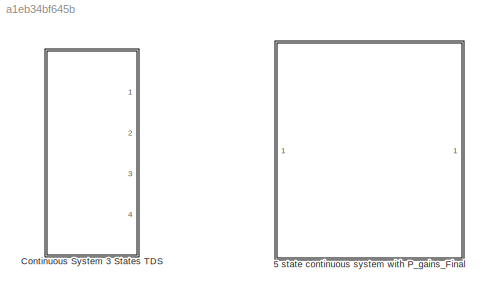
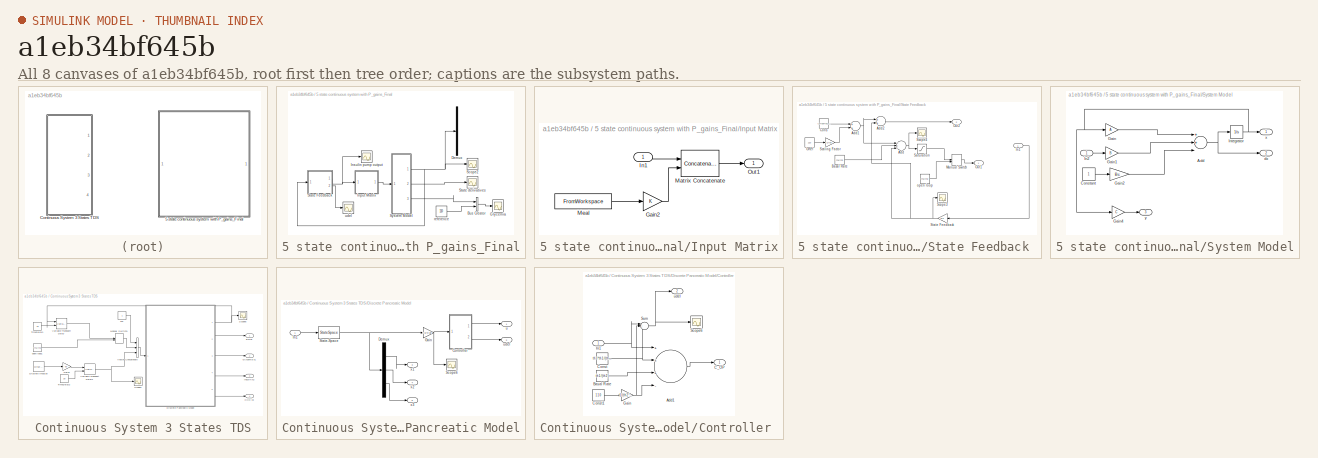
[diagram: thumbnail index - all 8 canvases of the model, root first then tree order]
MODEL slx_a1eb34bf645b
KIND model
CONFIG AbsTol = auto
CONFIG EnableMultiTasking = off
CONFIG FixedStep = auto
CONFIG MaxStep = auto
CONFIG MinStep = auto
CONFIG RelTol = 1e-3
CONFIG SampleTimeConstraint = Unconstrained
CONFIG Solver = VariableStepAuto
CONFIG SolverName = VariableStepAuto
CONFIG StartTime = 0.0
CONFIG StopTime = 1500
BLOCK [SubSystem] 5 state continuous system with P_gains_Final
  Ports = []
  RequestExecContextInheritance = off
BLOCK [BusCreator] 5 state continuous system with P_gains_Final/Bus Creator
  DisplayOption = bar
  InheritFromInputs = on
  Inputs = 2
  Ports = [2, 1]
BLOCK [Demux] 5 state continuous system with P_gains_Final/Demux
  DisplayOption = bar
  Outputs = 5
  Ports = [1, 5]
BLOCK [Scope] 5 state continuous system with P_gains_Final/Glycemia
  Floating = off
  NumInputPorts = 1
  Ports = [1]
  ScopeSpecificationString = Simulink.scopes.TimeScopeBlockCfg('CurrentConfiguration', extmgr.ConfigurationSet(extmgr.Configuration('Core','General UI',true,'FigureColor',[1 1 1]),extmgr.Configuration('Core','Source UI',true),extmgr.Configuration('Sources','WiredSimulink',true,'DataLoggingVariableName','ScopeData1'),extmgr.Configuration('Visuals','Time Domain',true,'SerializedDisplays',{struct('MinYLimReal','98.749','MaxYLimR...<+1828ch>
BLOCK [SubSystem] 5 state continuous system with P_gains_Final/Input Matrix
  Ports = [1, 1]
  RequestExecContextInheritance = off
BLOCK [Gain] 5 state continuous system with P_gains_Final/Input Matrix/Gain2
  OutDataTypeStr = Inherit: Inherit via internal rule
  ParamDataTypeStr = Inherit: Inherit via internal rule
  SaturateOnIntegerOverflow = off
BLOCK [Inport] 5 state continuous system with P_gains_Final/Input Matrix/In1
  IconDisplay = Port number
BLOCK [Concatenate] 5 state continuous system with P_gains_Final/Input Matrix/Matrix Concatenate
  ConcatenateDimension = 2
  Ports = [2, 1]
BLOCK [FromWorkspace] 5 state continuous system with P_gains_Final/Input Matrix/Meal
  SampleTime = 0
  VariableName = [temps'  repas']
  ZeroCross = on
BLOCK [Outport] 5 state continuous system with P_gains_Final/Input Matrix/Out1
  IconDisplay = Port number
BLOCK [Scope] 5 state continuous system with P_gains_Final/Insulin pump output
  Floating = off
  NumInputPorts = 1
  Ports = [1]
  ScopeSpecificationString = Simulink.scopes.TimeScopeBlockCfg('CurrentConfiguration', extmgr.ConfigurationSet(extmgr.Configuration('Core','General UI',true,'FigureColor',[1 1 1]),extmgr.Configuration('Core','Source UI',true),extmgr.Configuration('Sources','WiredSimulink',true,'DataLoggingVariableName','ScopeData1'),extmgr.Configuration('Visuals','Time Domain',true,'SerializedDisplays',{struct('MinYLimReal','-0.00721','MaxYLi...<+1682ch>
BLOCK [Scope] 5 state continuous system with P_gains_Final/Scope2
  Floating = off
  NumInputPorts = 1
  Ports = [1]
  ScopeSpecificationString = Simulink.scopes.TimeScopeBlockCfg('CurrentConfiguration', extmgr.ConfigurationSet(extmgr.Configuration('Core','General UI',true,'FigureColor',[1 1 1]),extmgr.Configuration('Core','Source UI',true),extmgr.Configuration('Sources','WiredSimulink',true,'DataLoggingVariableName','ScopeData2'),extmgr.Configuration('Visuals','Time Domain',true,'SerializedDisplays',{struct('MinYLimReal','-2.53715','MaxYLi...<+1918ch>
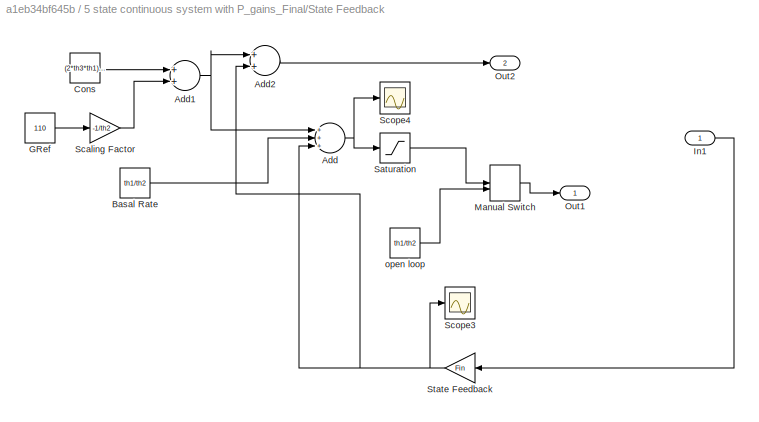
BLOCK [SubSystem] 5 state continuous system with P_gains_Final/State Feedback 
  Ports = [1, 2]
  RequestExecContextInheritance = off
BLOCK [Sum] 5 state continuous system with P_gains_Final/State Feedback /Add
  InputSameDT = off
  Inputs = +++
  OutDataTypeStr = Inherit: Inherit via internal rule
  Ports = [3, 1]
  SaturateOnIntegerOverflow = off
BLOCK [Sum] 5 state continuous system with P_gains_Final/State Feedback /Add1
  InputSameDT = off
  OutDataTypeStr = Inherit: Inherit via internal rule
  Ports = [2, 1]
  SaturateOnIntegerOverflow = off
BLOCK [Sum] 5 state continuous system with P_gains_Final/State Feedback /Add2
  InputSameDT = off
  OutDataTypeStr = Inherit: Inherit via internal rule
  Ports = [2, 1]
  SaturateOnIntegerOverflow = off
BLOCK [Constant] 5 state continuous system with P_gains_Final/State Feedback /Basal Rate
  Value = th1/th2
  VectorParams1D = off
BLOCK [Constant] 5 state continuous system with P_gains_Final/State Feedback /Cons
  Value = (2*th3*th1)/th2
  VectorParams1D = off
BLOCK [Constant] 5 state continuous system with P_gains_Final/State Feedback /GRef
  Value = 110
BLOCK [Inport] 5 state continuous system with P_gains_Final/State Feedback /In1
  IconDisplay = Port number
BLOCK [ManualSwitch] 5 state continuous system with P_gains_Final/State Feedback /Manual Switch
BLOCK [Outport] 5 state continuous system with P_gains_Final/State Feedback /Out1
  IconDisplay = Port number
BLOCK [Outport] 5 state continuous system with P_gains_Final/State Feedback /Out2
  IconDisplay = Port number
  Port = 2
BLOCK [Saturate] 5 state continuous system with P_gains_Final/State Feedback /Saturation
  InputPortMap = u0
  LowerLimit = 0
  Ports = [1, 1]
  UpperLimit = 2
BLOCK [Gain] 5 state continuous system with P_gains_Final/State Feedback /Scaling Factor
  Gain = -1/th2
  OutDataTypeStr = Inherit: Inherit via internal rule
  ParamDataTypeStr = Inherit: Inherit via internal rule
  SaturateOnIntegerOverflow = off
BLOCK [Scope] 5 state continuous system with P_gains_Final/State Feedback /Scope3
  Floating = off
  NumInputPorts = 1
  Ports = [1]
  ScopeSpecificationString = Simulink.scopes.TimeScopeBlockCfg('CurrentConfiguration', extmgr.ConfigurationSet(extmgr.Configuration('Core','General UI',true),extmgr.Configuration('Core','Source UI',true),extmgr.Configuration('Sources','WiredSimulink',true,'DataLoggingVariableName','ScopeData1'),extmgr.Configuration('Visuals','Time Domain',true,'SerializedDisplays',{struct('MinYLimReal','0.00895','MaxYLimReal','0.04994','YLabe...<+1486ch>
BLOCK [Scope] 5 state continuous system with P_gains_Final/State Feedback /Scope4
  Floating = off
  NumInputPorts = 1
  Ports = [1]
  ScopeSpecificationString = Simulink.scopes.TimeScopeBlockCfg('CurrentConfiguration', extmgr.ConfigurationSet(extmgr.Configuration('Core','General UI',true),extmgr.Configuration('Core','Source UI',true),extmgr.Configuration('Sources','WiredSimulink',true,'DataLoggingVariableName','ScopeData2'),extmgr.Configuration('Visuals','Time Domain',true,'SerializedDisplays',{struct('MinYLimReal','-4.59705','MaxYLimReal','0.57345','YLab...<+1433ch>
BLOCK [Gain] 5 state continuous system with P_gains_Final/State Feedback /State Feedback
  Gain = Fin
  Multiplication = Matrix(K*u)
  OutDataTypeStr = Inherit: Inherit via internal rule
  ParamDataTypeStr = Inherit: Inherit via internal rule
  SaturateOnIntegerOverflow = off
BLOCK [Constant] 5 state continuous system with P_gains_Final/State Feedback /open loop
  Value = th1/th2
BLOCK [Scope] 5 state continuous system with P_gains_Final/State derivatives
  Floating = off
  NumInputPorts = 1
  Ports = [1]
  ScopeSpecificationString = Simulink.scopes.TimeScopeBlockCfg('CurrentConfiguration', extmgr.ConfigurationSet(extmgr.Configuration('Core','General UI',true),extmgr.Configuration('Core','Source UI',true),extmgr.Configuration('Sources','WiredSimulink',true),extmgr.Configuration('Visuals','Time Domain',true,'SerializedDisplays',{struct('MinYLimReal','-1.17609','MaxYLimReal','3.22852','YLabelReal','','MinYLimMag','0.00000','MaxY...<+1596ch>
BLOCK [SubSystem] 5 state continuous system with P_gains_Final/System Model
  Ports = [1, 3]
  RequestExecContextInheritance = off
BLOCK [Sum] 5 state continuous system with P_gains_Final/System Model/Add
  InputSameDT = off
  Inputs = 3
  OutDataTypeStr = Inherit: Inherit via internal rule
  Ports = [3, 1]
  SaturateOnIntegerOverflow = off
BLOCK [Constant] 5 state continuous system with P_gains_Final/System Model/Constant
BLOCK [Gain] 5 state continuous system with P_gains_Final/System Model/Gain
  Gain = A
  Multiplication = Matrix(K*u)
  OutDataTypeStr = Inherit: Inherit via internal rule
  ParamDataTypeStr = Inherit: Inherit via internal rule
  SaturateOnIntegerOverflow = off
BLOCK [Gain] 5 state continuous system with P_gains_Final/System Model/Gain1
  Gain = B
  Multiplication = Matrix(K*u)
  OutDataTypeStr = Inherit: Inherit via internal rule
  ParamDataTypeStr = Inherit: Inherit via internal rule
  SaturateOnIntegerOverflow = off
BLOCK [Gain] 5 state continuous system with P_gains_Final/System Model/Gain2
  Gain = Bc
  Multiplication = Matrix(K*u)
  OutDataTypeStr = Inherit: Inherit via internal rule
  ParamDataTypeStr = Inherit: Inherit via internal rule
  SaturateOnIntegerOverflow = off
BLOCK [Gain] 5 state continuous system with P_gains_Final/System Model/Gain4
  Gain = C
  Multiplication = Matrix(K*u)
  OutDataTypeStr = Inherit: Inherit via internal rule
  ParamDataTypeStr = Inherit: Inherit via internal rule
  SaturateOnIntegerOverflow = off
BLOCK [Inport] 5 state continuous system with P_gains_Final/System Model/In2
  IconDisplay = Port number
BLOCK [Integrator] 5 state continuous system with P_gains_Final/System Model/Integrator
  InitialCondition = x0
  Ports = [1, 1]
  ZeroCross = off
BLOCK [Outport] 5 state continuous system with P_gains_Final/System Model/dx
  IconDisplay = Port number
  Port = 2
BLOCK [Outport] 5 state continuous system with P_gains_Final/System Model/x
  IconDisplay = Port number
BLOCK [Outport] 5 state continuous system with P_gains_Final/System Model/y
  IconDisplay = Port number
  Port = 3
BLOCK [Constant] 5 state continuous system with P_gains_Final/reference
  Value = 110
BLOCK [Scope] 5 state continuous system with P_gains_Final/udel
  Floating = off
  NumInputPorts = 1
  Ports = [1]
  ScopeSpecificationString = Simulink.scopes.TimeScopeBlockCfg('CurrentConfiguration', extmgr.ConfigurationSet(extmgr.Configuration('Core','General UI',true,'FigureColor',[1 1 1]),extmgr.Configuration('Core','Source UI',true),extmgr.Configuration('Sources','WiredSimulink',true,'DataLoggingVariableName','ScopeData1'),extmgr.Configuration('Visuals','Time Domain',true,'SerializedDisplays',{struct('MinYLimReal','-0.00721','MaxYLi...<+1682ch>
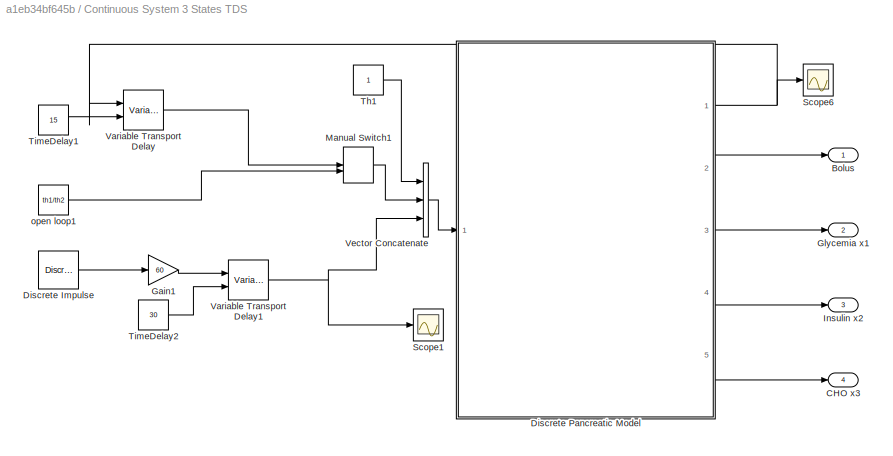
BLOCK [SubSystem] Continuous System 3 States TDS
  Ports = [0, 4]
  RequestExecContextInheritance = off
BLOCK [Outport] Continuous System 3 States TDS/Bolus
  IconDisplay = Port number
BLOCK [Outport] Continuous System 3 States TDS/CHO x3
  IconDisplay = Port number
  Port = 4
BLOCK [Reference] Continuous System 3 States TDS/Discrete Impulse  REF=dspsrcs4/Discrete 
Impulse
  Ports = [0, 1]
  SourceBlock = dspsrcs4/Discrete \nImpulse
  SourceProductBaseCode = DS
  SourceProductName = DSP System Toolbox
  SourceType = Discrete Impulse
BLOCK [SubSystem] Continuous System 3 States TDS/Discrete Pancreatic Model
  Ports = [1, 5]
  RequestExecContextInheritance = off
BLOCK [SubSystem] Continuous System 3 States TDS/Discrete Pancreatic Model/Controller 
  Ports = [1, 2]
  RequestExecContextInheritance = off
BLOCK [Sum] Continuous System 3 States TDS/Discrete Pancreatic Model/Controller /Add1
  InputSameDT = off
  Inputs = +++-
  OutDataTypeStr = Inherit: Inherit via internal rule
  Ports = [4, 1]
  SaturateOnIntegerOverflow = off
BLOCK [Constant] Continuous System 3 States TDS/Discrete Pancreatic Model/Controller /Basal Rate
  Value = th1/(th2)
  VectorParams1D = off
BLOCK [Outport] Continuous System 3 States TDS/Discrete Pancreatic Model/Controller /C_OP
  IconDisplay = Port number
BLOCK [Constant] Continuous System 3 States TDS/Discrete Pancreatic Model/Controller /Const
  Value = th3*th1/(th2*47.88)
  VectorParams1D = off
BLOCK [Constant] Continuous System 3 States TDS/Discrete Pancreatic Model/Controller /Const1
  Value = 110
  VectorParams1D = off
BLOCK [Gain] Continuous System 3 States TDS/Discrete Pancreatic Model/Controller /Gain
  Gain = 1/(th2*47.88)
  OutDataTypeStr = Inherit: Inherit via internal rule
  ParamDataTypeStr = Inherit: Inherit via internal rule
  SaturateOnIntegerOverflow = off
BLOCK [Inport] Continuous System 3 States TDS/Discrete Pancreatic Model/Controller /In1
  IconDisplay = Port number
BLOCK [Scope] Continuous System 3 States TDS/Discrete Pancreatic Model/Controller /Scope6
  Floating = off
  NumInputPorts = 1
  Ports = [1]
  ScopeSpecificationString = Simulink.scopes.TimeScopeBlockCfg('CurrentConfiguration', extmgr.ConfigurationSet(extmgr.Configuration('Core','General UI',true),extmgr.Configuration('Core','Source UI',true),extmgr.Configuration('Sources','WiredSimulink',true,'DataLoggingVariableName','ScopeData2'),extmgr.Configuration('Visuals','Time Domain',true,'SerializedDisplays',{struct('MinYLimReal','-0.00787','MaxYLimReal','0.07046','YLab...<+1406ch>
BLOCK [Sum] Continuous System 3 States TDS/Discrete Pancreatic Model/Controller /Sum
  IconShape = round
  InputSameDT = off
  Inputs = |+-+
  OutDataTypeStr = Inherit: Inherit via internal rule
  Ports = [3, 1]
  SaturateOnIntegerOverflow = off
BLOCK [Outport] Continuous System 3 States TDS/Discrete Pancreatic Model/Controller /udel
  IconDisplay = Port number
  Port = 2
BLOCK [Demux] Continuous System 3 States TDS/Discrete Pancreatic Model/Demux
  DisplayOption = bar
  Outputs = 3
  Ports = [1, 3]
BLOCK [Gain] Continuous System 3 States TDS/Discrete Pancreatic Model/Gain
  Gain = F3/47.88
  Multiplication = Matrix(K*u)
  OutDataTypeStr = Inherit: Inherit via internal rule
  ParamDataTypeStr = Inherit: Inherit via internal rule
  SaturateOnIntegerOverflow = off
BLOCK [Inport] Continuous System 3 States TDS/Discrete Pancreatic Model/In1
  IconDisplay = Port number
BLOCK [Scope] Continuous System 3 States TDS/Discrete Pancreatic Model/Scope6
  Floating = off
  NumInputPorts = 1
  Ports = [1]
  ScopeSpecificationString = Simulink.scopes.TimeScopeBlockCfg('CurrentConfiguration', extmgr.ConfigurationSet(extmgr.Configuration('Core','General UI',true),extmgr.Configuration('Core','Source UI',true),extmgr.Configuration('Sources','WiredSimulink',true,'DataLoggingVariableName','ScopeData1'),extmgr.Configuration('Visuals','Time Domain',true,'SerializedDisplays',{struct('MinYLimReal','0.0017','MaxYLimReal','0.00211','YLabel...<+1401ch>
BLOCK [StateSpace] Continuous System 3 States TDS/Discrete Pancreatic Model/State-Space
  A = A3_c
  B = B3_c
  C = C3_c
  D = D3_c
  InitialCondition = [110; th1/th2; 0]
  Ports = [1, 1]
BLOCK [Outport] Continuous System 3 States TDS/Discrete Pancreatic Model/u
  IconDisplay = Port number
BLOCK [Outport] Continuous System 3 States TDS/Discrete Pancreatic Model/udel
  IconDisplay = Port number
  Port = 2
BLOCK [Outport] Continuous System 3 States TDS/Discrete Pancreatic Model/x1
  IconDisplay = Port number
  Port = 3
BLOCK [Outport] Continuous System 3 States TDS/Discrete Pancreatic Model/x2
  IconDisplay = Port number
  Port = 4
BLOCK [Outport] Continuous System 3 States TDS/Discrete Pancreatic Model/x3
  IconDisplay = Port number
  Port = 5
BLOCK [Gain] Continuous System 3 States TDS/Gain1
  Gain = 60
  OutDataTypeStr = Inherit: Inherit via internal rule
  ParamDataTypeStr = Inherit: Inherit via internal rule
  SaturateOnIntegerOverflow = off
BLOCK [Outport] Continuous System 3 States TDS/Glycemia x1
  IconDisplay = Port number
  Port = 2
BLOCK [Outport] Continuous System 3 States TDS/Insulin x2
  IconDisplay = Port number
  Port = 3
BLOCK [ManualSwitch] Continuous System 3 States TDS/Manual Switch1
BLOCK [Scope] Continuous System 3 States TDS/Scope1
  Floating = off
  NumInputPorts = 1
  Ports = [1]
  ScopeSpecificationString = Simulink.scopes.TimeScopeBlockCfg('CurrentConfiguration', extmgr.ConfigurationSet(extmgr.Configuration('Core','General UI',true),extmgr.Configuration('Core','Source UI',true),extmgr.Configuration('Sources','WiredSimulink',true,'DataLoggingVariableName','ScopeData3'),extmgr.Configuration('Visuals','Time Domain',true,'SerializedDisplays',{struct('MinYLimReal','-3.75','MaxYLimReal','33.75','YLabelRea...<+1507ch>
BLOCK [Scope] Continuous System 3 States TDS/Scope6
  Floating = off
  NumInputPorts = 1
  Ports = [1]
  ScopeSpecificationString = Simulink.scopes.TimeScopeBlockCfg('CurrentConfiguration', extmgr.ConfigurationSet(extmgr.Configuration('Core','General UI',true,'FigureColor',[1 1 1]),extmgr.Configuration('Core','Source UI',true),extmgr.Configuration('Sources','WiredSimulink',true,'DataLoggingVariableName','ScopeData2'),extmgr.Configuration('Visuals','Time Domain',true,'SerializedDisplays',{struct('MinYLimReal','0.00855','MaxYLim...<+1697ch>
BLOCK [Constant] Continuous System 3 States TDS/Th1
BLOCK [Constant] Continuous System 3 States TDS/TimeDelay1
  Value = 15
BLOCK [Constant] Continuous System 3 States TDS/TimeDelay2
  Value = 30
BLOCK [VariableTransportDelay] Continuous System 3 States TDS/Variable Transport Delay
  InitialOutput = th1/th2
  MaximumDelay = 20
  Ports = [2, 1]
  VariableDelayType = Variable transport delay
BLOCK [VariableTransportDelay] Continuous System 3 States TDS/Variable Transport Delay1
  MaximumDelay = 40
  Ports = [2, 1]
  VariableDelayType = Variable transport delay
BLOCK [Concatenate] Continuous System 3 States TDS/Vector Concatenate
  NumInputs = 3
  Ports = [3, 1]
BLOCK [Constant] Continuous System 3 States TDS/open loop1
  Value = th1/th2
LINE 5 state continuous system with P_gains_Final/Bus Creator:1 -> 5 state continuous system with P_gains_Final/Glycemia:1
LINE 5 state continuous system with P_gains_Final/Input Matrix/Gain2:1 -> 5 state continuous system with P_gains_Final/Input Matrix/Matrix Concatenate:2
LINE 5 state continuous system with P_gains_Final/Input Matrix/In1:1 -> 5 state continuous system with P_gains_Final/Input Matrix/Matrix Concatenate:1
LINE 5 state continuous system with P_gains_Final/Input Matrix/Matrix Concatenate:1 -> 5 state continuous system with P_gains_Final/Input Matrix/Out1:1
LINE 5 state continuous system with P_gains_Final/Input Matrix/Meal:1 -> 5 state continuous system with P_gains_Final/Input Matrix/Gain2:1
LINE 5 state continuous system with P_gains_Final/Input Matrix:1 -> 5 state continuous system with P_gains_Final/System Model:1
NET 5 state continuous system with P_gains_Final/State Feedback /Add1:1 -> 5 state continuous system with P_gains_Final/State Feedback /Add2:1, 5 state continuous system with P_gains_Final/State Feedback /Add:1
LINE 5 state continuous system with P_gains_Final/State Feedback /Add2:1 -> 5 state continuous system with P_gains_Final/State Feedback /Out2:1
NET 5 state continuous system with P_gains_Final/State Feedback /Add:1 -> 5 state continuous system with P_gains_Final/State Feedback /Saturation:1, 5 state continuous system with P_gains_Final/State Feedback /Scope4:1
LINE 5 state continuous system with P_gains_Final/State Feedback /Basal Rate:1 -> 5 state continuous system with P_gains_Final/State Feedback /Add:2
LINE 5 state continuous system with P_gains_Final/State Feedback /Cons:1 -> 5 state continuous system with P_gains_Final/State Feedback /Add1:1
LINE 5 state continuous system with P_gains_Final/State Feedback /GRef:1 -> 5 state continuous system with P_gains_Final/State Feedback /Scaling Factor:1
LINE 5 state continuous system with P_gains_Final/State Feedback /In1:1 -> 5 state continuous system with P_gains_Final/State Feedback /State Feedback:1
LINE 5 state continuous system with P_gains_Final/State Feedback /Manual Switch:1 -> 5 state continuous system with P_gains_Final/State Feedback /Out1:1
LINE 5 state continuous system with P_gains_Final/State Feedback /Saturation:1 -> 5 state continuous system with P_gains_Final/State Feedback /Manual Switch:1
LINE 5 state continuous system with P_gains_Final/State Feedback /Scaling Factor:1 -> 5 state continuous system with P_gains_Final/State Feedback /Add1:2
NET 5 state continuous system with P_gains_Final/State Feedback /State Feedback:1 -> 5 state continuous system with P_gains_Final/State Feedback /Add2:2, 5 state continuous system with P_gains_Final/State Feedback /Add:3, 5 state continuous system with P_gains_Final/State Feedback /Scope3:1
LINE 5 state continuous system with P_gains_Final/State Feedback /open loop:1 -> 5 state continuous system with P_gains_Final/State Feedback /Manual Switch:2
NET 5 state continuous system with P_gains_Final/State Feedback :1 -> 5 state continuous system with P_gains_Final/Input Matrix:1, 5 state continuous system with P_gains_Final/Insulin pump output:1
LINE 5 state continuous system with P_gains_Final/State Feedback :2 -> 5 state continuous system with P_gains_Final/udel:1
NET 5 state continuous system with P_gains_Final/System Model/Add:1 -> 5 state continuous system with P_gains_Final/System Model/Integrator:1, 5 state continuous system with P_gains_Final/System Model/dx:1
LINE 5 state continuous system with P_gains_Final/System Model/Constant:1 -> 5 state continuous system with P_gains_Final/System Model/Gain2:1
LINE 5 state continuous system with P_gains_Final/System Model/Gain1:1 -> 5 state continuous system with P_gains_Final/System Model/Add:2
LINE 5 state continuous system with P_gains_Final/System Model/Gain2:1 -> 5 state continuous system with P_gains_Final/System Model/Add:3
LINE 5 state continuous system with P_gains_Final/System Model/Gain4:1 -> 5 state continuous system with P_gains_Final/System Model/y:1
LINE 5 state continuous system with P_gains_Final/System Model/Gain:1 -> 5 state continuous system with P_gains_Final/System Model/Add:1
LINE 5 state continuous system with P_gains_Final/System Model/In2:1 -> 5 state continuous system with P_gains_Final/System Model/Gain1:1
NET 5 state continuous system with P_gains_Final/System Model/Integrator:1 -> 5 state continuous system with P_gains_Final/System Model/Gain4:1, 5 state continuous system with P_gains_Final/System Model/Gain:1, 5 state continuous system with P_gains_Final/System Model/x:1
NET 5 state continuous system with P_gains_Final/System Model:1 -> 5 state continuous system with P_gains_Final/Demux:1, 5 state continuous system with P_gains_Final/Scope2:1, 5 state continuous system with P_gains_Final/State Feedback :1
LINE 5 state continuous system with P_gains_Final/System Model:2 -> 5 state continuous system with P_gains_Final/State derivatives:1
LINE 5 state continuous system with P_gains_Final/System Model:3 -> 5 state continuous system with P_gains_Final/Bus Creator:1
LINE 5 state continuous system with P_gains_Final/reference:1 -> 5 state continuous system with P_gains_Final/Bus Creator:2
LINE Continuous System 3 States TDS/Discrete Impulse:1 -> Continuous System 3 States TDS/Gain1:1
LINE Continuous System 3 States TDS/Discrete Pancreatic Model/Controller /Add1:1 -> Continuous System 3 States TDS/Discrete Pancreatic Model/Controller /C_OP:1
LINE Continuous System 3 States TDS/Discrete Pancreatic Model/Controller /Basal Rate:1 -> Continuous System 3 States TDS/Discrete Pancreatic Model/Controller /Add1:3
LINE Continuous System 3 States TDS/Discrete Pancreatic Model/Controller /Const1:1 -> Continuous System 3 States TDS/Discrete Pancreatic Model/Controller /Gain:1
NET Continuous System 3 States TDS/Discrete Pancreatic Model/Controller /Const:1 -> Continuous System 3 States TDS/Discrete Pancreatic Model/Controller /Add1:2, Continuous System 3 States TDS/Discrete Pancreatic Model/Controller /Sum:3
NET Continuous System 3 States TDS/Discrete Pancreatic Model/Controller /Gain:1 -> Continuous System 3 States TDS/Discrete Pancreatic Model/Controller /Add1:4, Continuous System 3 States TDS/Discrete Pancreatic Model/Controller /Sum:2
NET Continuous System 3 States TDS/Discrete Pancreatic Model/Controller /In1:1 -> Continuous System 3 States TDS/Discrete Pancreatic Model/Controller /Add1:1, Continuous System 3 States TDS/Discrete Pancreatic Model/Controller /Sum:1
NET Continuous System 3 States TDS/Discrete Pancreatic Model/Controller /Sum:1 -> Continuous System 3 States TDS/Discrete Pancreatic Model/Controller /Scope6:1, Continuous System 3 States TDS/Discrete Pancreatic Model/Controller /udel:1
LINE Continuous System 3 States TDS/Discrete Pancreatic Model/Controller :1 -> Continuous System 3 States TDS/Discrete Pancreatic Model/u:1
LINE Continuous System 3 States TDS/Discrete Pancreatic Model/Controller :2 -> Continuous System 3 States TDS/Discrete Pancreatic Model/udel:1
LINE Continuous System 3 States TDS/Discrete Pancreatic Model/Demux:1 -> Continuous System 3 States TDS/Discrete Pancreatic Model/x1:1
LINE Continuous System 3 States TDS/Discrete Pancreatic Model/Demux:2 -> Continuous System 3 States TDS/Discrete Pancreatic Model/x2:1
LINE Continuous System 3 States TDS/Discrete Pancreatic Model/Demux:3 -> Continuous System 3 States TDS/Discrete Pancreatic Model/x3:1
NET Continuous System 3 States TDS/Discrete Pancreatic Model/Gain:1 -> Continuous System 3 States TDS/Discrete Pancreatic Model/Controller :1, Continuous System 3 States TDS/Discrete Pancreatic Model/Scope6:1
LINE Continuous System 3 States TDS/Discrete Pancreatic Model/In1:1 -> Continuous System 3 States TDS/Discrete Pancreatic Model/State-Space:1
NET Continuous System 3 States TDS/Discrete Pancreatic Model/State-Space:1 -> Continuous System 3 States TDS/Discrete Pancreatic Model/Demux:1, Continuous System 3 States TDS/Discrete Pancreatic Model/Gain:1
NET Continuous System 3 States TDS/Discrete Pancreatic Model:1 -> Continuous System 3 States TDS/Scope6:1, Continuous System 3 States TDS/Variable Transport Delay:1
LINE Continuous System 3 States TDS/Discrete Pancreatic Model:2 -> Continuous System 3 States TDS/Bolus:1
LINE Continuous System 3 States TDS/Discrete Pancreatic Model:3 -> Continuous System 3 States TDS/Glycemia x1:1
LINE Continuous System 3 States TDS/Discrete Pancreatic Model:4 -> Continuous System 3 States TDS/Insulin x2:1
LINE Continuous System 3 States TDS/Discrete Pancreatic Model:5 -> Continuous System 3 States TDS/CHO x3:1
LINE Continuous System 3 States TDS/Gain1:1 -> Continuous System 3 States TDS/Variable Transport Delay1:1
LINE Continuous System 3 States TDS/Manual Switch1:1 -> Continuous System 3 States TDS/Vector Concatenate:2
LINE Continuous System 3 States TDS/Th1:1 -> Continuous System 3 States TDS/Vector Concatenate:1
LINE Continuous System 3 States TDS/TimeDelay1:1 -> Continuous System 3 States TDS/Variable Transport Delay:2
LINE Continuous System 3 States TDS/TimeDelay2:1 -> Continuous System 3 States TDS/Variable Transport Delay1:2
NET Continuous System 3 States TDS/Variable Transport Delay1:1 -> Continuous System 3 States TDS/Scope1:1, Continuous System 3 States TDS/Vector Concatenate:3
LINE Continuous System 3 States TDS/Variable Transport Delay:1 -> Continuous System 3 States TDS/Manual Switch1:1
LINE Continuous System 3 States TDS/Vector Concatenate:1 -> Continuous System 3 States TDS/Discrete Pancreatic Model:1
LINE Continuous System 3 States TDS/open loop1:1 -> Continuous System 3 States TDS/Manual Switch1:2
note: NET lines group one-source signal fan-out (src -> all destinations, sorted); 1:1 wires keep LINE
